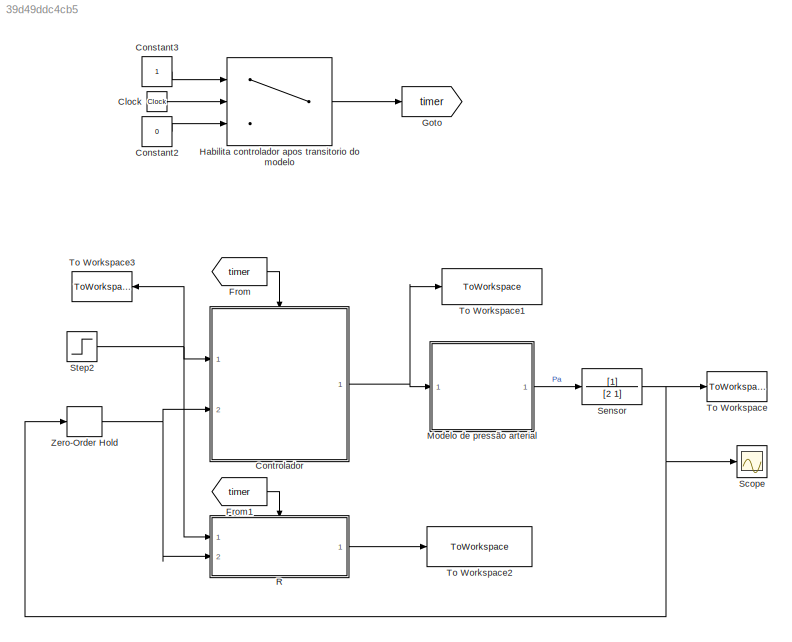
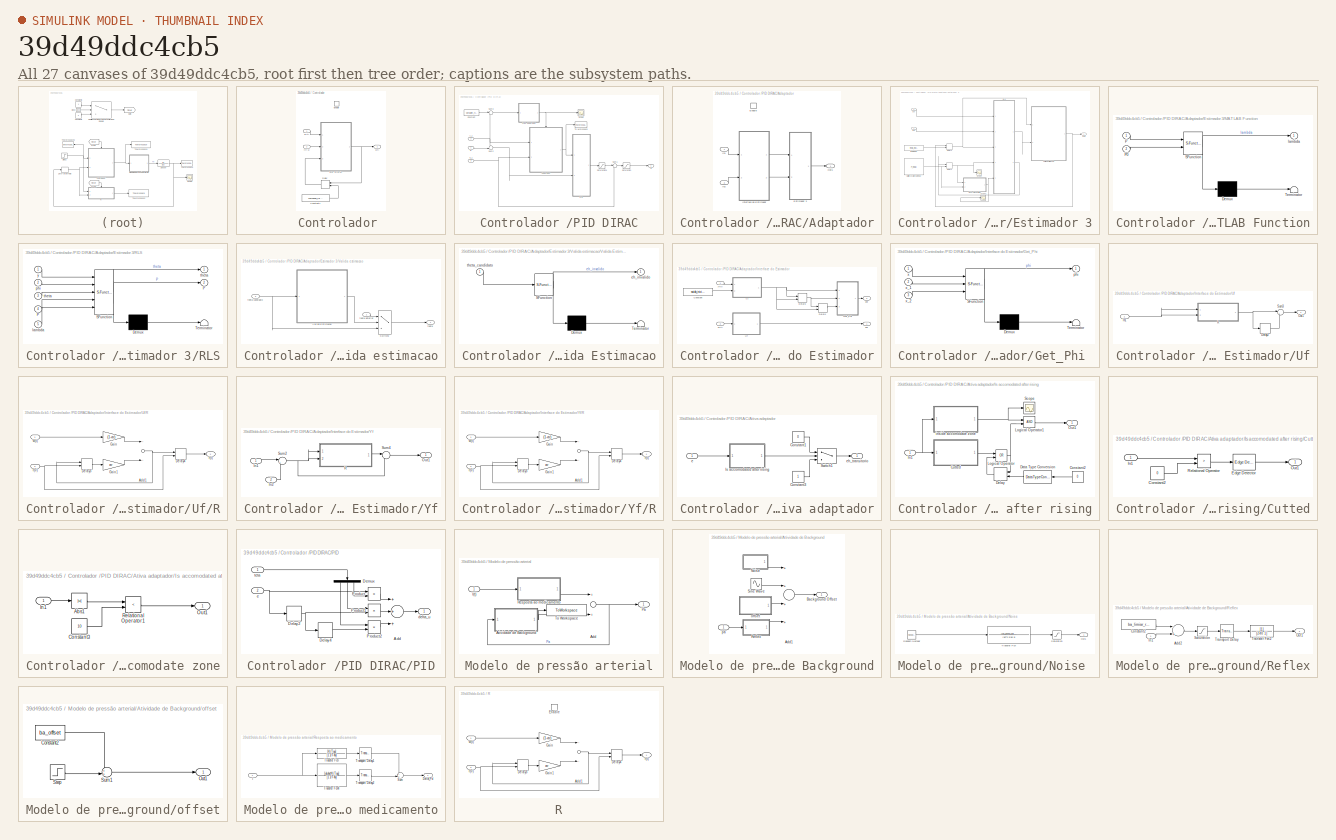
[diagram: thumbnail index - all 27 canvases of the model, root first then tree order]
MODEL slx_39d49ddc4cb5
KIND model
CONFIG AbsTol = auto
CONFIG EnableMultiTasking = off
CONFIG FixedStep = auto
CONFIG MaxStep = auto
CONFIG MinStep = auto
CONFIG RelTol = 1e-3
CONFIG SampleTimeConstraint = Unconstrained
CONFIG Solver = VariableStepAuto
CONFIG SolverName = VariableStepAuto
CONFIG StartTime = 0.0
CONFIG StopTime = 120000
BLOCK [Clock] Clock
BLOCK [Constant] Constant2
  Value = 0
BLOCK [Constant] Constant3
BLOCK [SubSystem] Controlador 
  Ports = [2, 1, 1]
  RequestExecContextInheritance = off
BLOCK [Constant] Controlador /Constant1
  Value = comando_inicial
BLOCK [Delay] Controlador /Delay
  DelayLength = 1
  InitialCondition = 0
  InitialConditionSource = Input port
  InputPortMap = u0,p4
  Ports = [2, 1]
  SampleTime = T
BLOCK [EnablePort] Controlador /Enable
  Ports = []
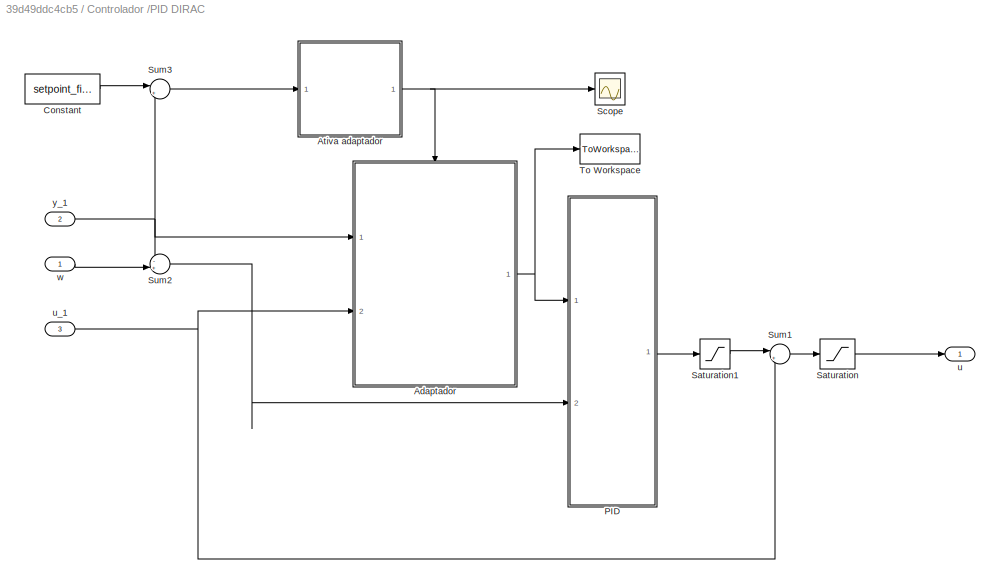
BLOCK [SubSystem] Controlador /PID DIRAC
  Ports = [3, 1]
  RequestExecContextInheritance = off
BLOCK [SubSystem] Controlador /PID DIRAC/Adaptador
  Ports = [2, 1, 1]
  RequestExecContextInheritance = off
BLOCK [EnablePort] Controlador /PID DIRAC/Adaptador/Enable
  Ports = []
BLOCK [SubSystem] Controlador /PID DIRAC/Adaptador/Estimador 3
  Ports = [2, 1]
  RequestExecContextInheritance = off
BLOCK [Delay] Controlador /PID DIRAC/Adaptador/Estimador 3/Delay2
  DelayLength = 1
  InitialCondition = 0
  InitialConditionSource = Input port
  InputPortMap = u0,p4
  Ports = [2, 1]
  SampleTime = T
BLOCK [Delay] Controlador /PID DIRAC/Adaptador/Estimador 3/Delay3
  DelayLength = 1
  InitialCondition = 0
  InitialConditionSource = Input port
  InputPortMap = u0,p4
  Ports = [2, 1]
  SampleTime = T
BLOCK [SubSystem] Controlador /PID DIRAC/Adaptador/Estimador 3/MATLAB Function
  ErrorFcn = Stateflow.Translate.translate
  PermitHierarchicalResolution = ExplicitOnly
  Ports = [2, 1]
  RequestExecContextInheritance = off
  SFBlockType = MATLAB Function
  TreatAsAtomicUnit = on
BLOCK [Demux] Controlador /PID DIRAC/Adaptador/Estimador 3/MATLAB Function/ Demux 
  Outputs = 1
  Ports = [1, 1]
BLOCK [S-Function] Controlador /PID DIRAC/Adaptador/Estimador 3/MATLAB Function/ SFunction 
  EnableBusSupport = on
  FunctionName = sf_sfun
  PortCounts = [2 2]
  Ports = [2, 2]
  SFcnIsStateOwnerBlock = off
  SFunctionDeploymentMode = off
  Tag = Stateflow S-Function Verificacao_Controle_Pressao_3 1
BLOCK [Terminator] Controlador /PID DIRAC/Adaptador/Estimador 3/MATLAB Function/ Terminator 
BLOCK [Inport] Controlador /PID DIRAC/Adaptador/Estimador 3/MATLAB Function/P
  IconDisplay = Port number
BLOCK [Inport] Controlador /PID DIRAC/Adaptador/Estimador 3/MATLAB Function/P0
  IconDisplay = Port number
  Port = 2
BLOCK [Outport] Controlador /PID DIRAC/Adaptador/Estimador 3/MATLAB Function/lambda
  IconDisplay = Port number
BLOCK [Constant] Controlador /PID DIRAC/Adaptador/Estimador 3/Matriz covariancia inicial
  Value = P_inicial
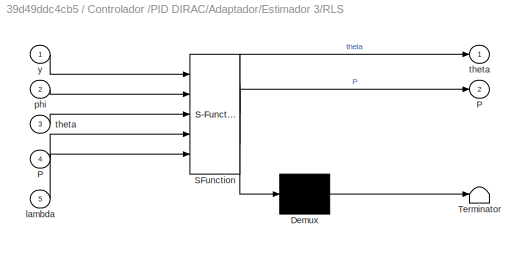
BLOCK [SubSystem] Controlador /PID DIRAC/Adaptador/Estimador 3/RLS
  ErrorFcn = Stateflow.Translate.translate
  PermitHierarchicalResolution = ExplicitOnly
  Ports = [5, 2]
  RequestExecContextInheritance = off
  SFBlockType = MATLAB Function
  TreatAsAtomicUnit = on
BLOCK [Demux] Controlador /PID DIRAC/Adaptador/Estimador 3/RLS/ Demux 
  Outputs = 1
  Ports = [1, 1]
BLOCK [S-Function] Controlador /PID DIRAC/Adaptador/Estimador 3/RLS/ SFunction 
  EnableBusSupport = on
  FunctionName = sf_sfun
  PortCounts = [5 3]
  Ports = [5, 3]
  SFcnIsStateOwnerBlock = off
  SFunctionDeploymentMode = off
  Tag = Stateflow S-Function Verificacao_Controle_Pressao_3 2
BLOCK [Terminator] Controlador /PID DIRAC/Adaptador/Estimador 3/RLS/ Terminator 
BLOCK [Outport] Controlador /PID DIRAC/Adaptador/Estimador 3/RLS/P
  IconDisplay = Port number
  Port = 2
BLOCK [Inport] Controlador /PID DIRAC/Adaptador/Estimador 3/RLS/P 
  IconDisplay = Port number
  Port = 4
BLOCK [Inport] Controlador /PID DIRAC/Adaptador/Estimador 3/RLS/lambda
  IconDisplay = Port number
  Port = 5
BLOCK [Inport] Controlador /PID DIRAC/Adaptador/Estimador 3/RLS/phi
  IconDisplay = Port number
  Port = 2
BLOCK [Outport] Controlador /PID DIRAC/Adaptador/Estimador 3/RLS/theta
  IconDisplay = Port number
BLOCK [Inport] Controlador /PID DIRAC/Adaptador/Estimador 3/RLS/theta 
  IconDisplay = Port number
  Port = 3
BLOCK [Inport] Controlador /PID DIRAC/Adaptador/Estimador 3/RLS/y
  IconDisplay = Port number
BLOCK [Scope] Controlador /PID DIRAC/Adaptador/Estimador 3/Scope
  Floating = off
  NumInputPorts = 1
  Ports = [1]
  ScopeSpecificationString = Simulink.scopes.TimeScopeBlockCfg('CurrentConfiguration', extmgr.ConfigurationSet(extmgr.Configuration('Core','General UI',true),extmgr.Configuration('Core','Source UI',true),extmgr.Configuration('Sources','WiredSimulink',true,'DataLoggingVariableName','ScopeData1'),extmgr.Configuration('Visuals','Time Domain',true,'SerializedDisplays',{struct('MinYLimReal','-0.51864','MaxYLimReal','1.16874','YLab...<+1509ch>
BLOCK [Scope] Controlador /PID DIRAC/Adaptador/Estimador 3/Scope1
  Floating = off
  NumInputPorts = 1
  Ports = [1]
  ScopeSpecificationString = Simulink.scopes.TimeScopeBlockCfg('CurrentConfiguration', extmgr.ConfigurationSet(extmgr.Configuration('Core','General UI',true),extmgr.Configuration('Core','Source UI',true),extmgr.Configuration('Sources','WiredSimulink',true,'DataLoggingVariableName','ScopeData2'),extmgr.Configuration('Visuals','Time Domain',true,'SerializedDisplays',{struct('MinYLimReal','0.58325','MaxYLimReal','1.04983','YLabe...<+1445ch>
BLOCK [SubSystem] Controlador /PID DIRAC/Adaptador/Estimador 3/Valida estimacao
  Ports = [2, 1]
  RequestExecContextInheritance = off
BLOCK [Switch] Controlador /PID DIRAC/Adaptador/Estimador 3/Valida estimacao/Switch2
  Criteria = u2 > Threshold
  InputSameDT = off
  SaturateOnIntegerOverflow = off
BLOCK [SubSystem] Controlador /PID DIRAC/Adaptador/Estimador 3/Valida estimacao/Valida Estimacao
  ErrorFcn = Stateflow.Translate.translate
  PermitHierarchicalResolution = ExplicitOnly
  Ports = [1, 1]
  RequestExecContextInheritance = off
  SFBlockType = MATLAB Function
  TreatAsAtomicUnit = on
BLOCK [Demux] Controlador /PID DIRAC/Adaptador/Estimador 3/Valida estimacao/Valida Estimacao/ Demux 
  Outputs = 1
  Ports = [1, 1]
BLOCK [S-Function] Controlador /PID DIRAC/Adaptador/Estimador 3/Valida estimacao/Valida Estimacao/ SFunction 
  EnableBusSupport = on
  FunctionName = sf_sfun
  PortCounts = [1 2]
  Ports = [1, 2]
  SFcnIsStateOwnerBlock = off
  SFunctionDeploymentMode = off
  Tag = Stateflow S-Function Verificacao_Controle_Pressao_3 3
BLOCK [Terminator] Controlador /PID DIRAC/Adaptador/Estimador 3/Valida estimacao/Valida Estimacao/ Terminator 
BLOCK [Outport] Controlador /PID DIRAC/Adaptador/Estimador 3/Valida estimacao/Valida Estimacao/eh_invalido
  IconDisplay = Port number
BLOCK [Inport] Controlador /PID DIRAC/Adaptador/Estimador 3/Valida estimacao/Valida Estimacao/theta_candidato
  IconDisplay = Port number
BLOCK [Outport] Controlador /PID DIRAC/Adaptador/Estimador 3/Valida estimacao/theta
  IconDisplay = Port number
BLOCK [Inport] Controlador /PID DIRAC/Adaptador/Estimador 3/Valida estimacao/theta anterior
  IconDisplay = Port number
BLOCK [Inport] Controlador /PID DIRAC/Adaptador/Estimador 3/Valida estimacao/theta candidato
  IconDisplay = Port number
  Port = 2
BLOCK [Inport] Controlador /PID DIRAC/Adaptador/Estimador 3/phi
  IconDisplay = Port number
  Port = 2
BLOCK [Inport] Controlador /PID DIRAC/Adaptador/Estimador 3/psi
  IconDisplay = Port number
BLOCK [Outport] Controlador /PID DIRAC/Adaptador/Estimador 3/theta
  IconDisplay = Port number
BLOCK [Constant] Controlador /PID DIRAC/Adaptador/Estimador 3/theta inicial
  Value = theta_inicial
BLOCK [Inport] Controlador /PID DIRAC/Adaptador/In1
  IconDisplay = Port number
BLOCK [Inport] Controlador /PID DIRAC/Adaptador/In2
  IconDisplay = Port number
  Port = 2
BLOCK [SubSystem] Controlador /PID DIRAC/Adaptador/Interface do Estimador
  Ports = [2, 2]
  RequestExecContextInheritance = off
BLOCK [Constant] Controlador /PID DIRAC/Adaptador/Interface do Estimador/Constant
  Value = saida_inicial_maxima
BLOCK [Delay] Controlador /PID DIRAC/Adaptador/Interface do Estimador/Delay1
  DelayLength = 1
  InitialCondition = 0
  InitialConditionSource = Input port
  InputPortMap = u0,p4
  Ports = [2, 1]
  SampleTime = T
BLOCK [Delay] Controlador /PID DIRAC/Adaptador/Interface do Estimador/Delay3
  DelayLength = 1
  InitialCondition = 0
  InitialConditionSource = Input port
  InputPortMap = u0,p4
  Ports = [2, 1]
  SampleTime = T
BLOCK [SubSystem] Controlador /PID DIRAC/Adaptador/Interface do Estimador/Get_Phi 
  ErrorFcn = Stateflow.Translate.translate
  PermitHierarchicalResolution = ExplicitOnly
  Ports = [3, 1]
  RequestExecContextInheritance = off
  SFBlockType = MATLAB Function
  TreatAsAtomicUnit = on
BLOCK [Demux] Controlador /PID DIRAC/Adaptador/Interface do Estimador/Get_Phi / Demux 
  Outputs = 1
  Ports = [1, 1]
BLOCK [S-Function] Controlador /PID DIRAC/Adaptador/Interface do Estimador/Get_Phi / SFunction 
  EnableBusSupport = on
  FunctionName = sf_sfun
  PortCounts = [3 2]
  Ports = [3, 2]
  SFcnIsStateOwnerBlock = off
  SFunctionDeploymentMode = off
  Tag = Stateflow S-Function Verificacao_Controle_Pressao_3 12
BLOCK [Terminator] Controlador /PID DIRAC/Adaptador/Interface do Estimador/Get_Phi / Terminator 
BLOCK [Outport] Controlador /PID DIRAC/Adaptador/Interface do Estimador/Get_Phi /phi
  IconDisplay = Port number
BLOCK [Inport] Controlador /PID DIRAC/Adaptador/Interface do Estimador/Get_Phi /x
  IconDisplay = Port number
BLOCK [Inport] Controlador /PID DIRAC/Adaptador/Interface do Estimador/Get_Phi /x_1
  IconDisplay = Port number
  Port = 2
BLOCK [Inport] Controlador /PID DIRAC/Adaptador/Interface do Estimador/Get_Phi /x_2
  IconDisplay = Port number
  Port = 3
BLOCK [SubSystem] Controlador /PID DIRAC/Adaptador/Interface do Estimador/Uf
  Ports = [1, 1]
  RequestExecContextInheritance = off
BLOCK [Delay] Controlador /PID DIRAC/Adaptador/Interface do Estimador/Uf/Delay2
  DelayLength = 1
  InputPortMap = u0
  Ports = [1, 1]
BLOCK [Inport] Controlador /PID DIRAC/Adaptador/Interface do Estimador/Uf/In1
  IconDisplay = Port number
BLOCK [Outport] Controlador /PID DIRAC/Adaptador/Interface do Estimador/Uf/Out1
  IconDisplay = Port number
BLOCK [SubSystem] Controlador /PID DIRAC/Adaptador/Interface do Estimador/Uf/R
  Ports = [2, 1]
  RequestExecContextInheritance = off
  TreatAsAtomicUnit = on
BLOCK [Sum] Controlador /PID DIRAC/Adaptador/Interface do Estimador/Uf/R/Add1
  InputSameDT = off
  OutDataTypeStr = Inherit: Inherit via internal rule
  Ports = [2, 1]
  SaturateOnIntegerOverflow = off
BLOCK [Delay] Controlador /PID DIRAC/Adaptador/Interface do Estimador/Uf/R/Delay3
  DelayLength = 1
  InitialCondition = 100
  InitialConditionSource = Input port
  InputPortMap = u0,p4
  Ports = [2, 1]
  SampleTime = T
BLOCK [Delay] Controlador /PID DIRAC/Adaptador/Interface do Estimador/Uf/R/Delay4
  DelayLength = d
  InitialCondition = 0
  InitialConditionSource = Input port
  InputPortMap = u0,p4
  Ports = [2, 1]
  SampleTime = T
BLOCK [Gain] Controlador /PID DIRAC/Adaptador/Interface do Estimador/Uf/R/Gain
  Gain = (1-ar)
  OutDataTypeStr = Inherit: Inherit via internal rule
  ParamDataTypeStr = Inherit: Inherit via internal rule
  SaturateOnIntegerOverflow = off
BLOCK [Gain] Controlador /PID DIRAC/Adaptador/Interface do Estimador/Uf/R/Gain1
  Gain = ar
  OutDataTypeStr = Inherit: Inherit via internal rule
  ParamDataTypeStr = Inherit: Inherit via internal rule
  SaturateOnIntegerOverflow = off
BLOCK [Inport] Controlador /PID DIRAC/Adaptador/Interface do Estimador/Uf/R/r(0)
  IconDisplay = Port number
  Port = 2
BLOCK [Outport] Controlador /PID DIRAC/Adaptador/Interface do Estimador/Uf/R/r(t)
  IconDisplay = Port number
BLOCK [Inport] Controlador /PID DIRAC/Adaptador/Interface do Estimador/Uf/R/w(t)
  IconDisplay = Port number
BLOCK [Sum] Controlador /PID DIRAC/Adaptador/Interface do Estimador/Uf/Sum3
  IconShape = round
  InputSameDT = off
  Inputs = |+-
  OutDataTypeStr = Inherit: Inherit via internal rule
  Ports = [2, 1]
  SaturateOnIntegerOverflow = off
BLOCK [SubSystem] Controlador /PID DIRAC/Adaptador/Interface do Estimador/Yf
  Ports = [2, 1]
  RequestExecContextInheritance = off
BLOCK [Inport] Controlador /PID DIRAC/Adaptador/Interface do Estimador/Yf/In1
  IconDisplay = Port number
BLOCK [Inport] Controlador /PID DIRAC/Adaptador/Interface do Estimador/Yf/In2
  IconDisplay = Port number
  Port = 2
BLOCK [Outport] Controlador /PID DIRAC/Adaptador/Interface do Estimador/Yf/Out1
  IconDisplay = Port number
BLOCK [SubSystem] Controlador /PID DIRAC/Adaptador/Interface do Estimador/Yf/R
  Ports = [2, 1]
  RequestExecContextInheritance = off
  TreatAsAtomicUnit = on
BLOCK [Sum] Controlador /PID DIRAC/Adaptador/Interface do Estimador/Yf/R/Add1
  InputSameDT = off
  OutDataTypeStr = Inherit: Inherit via internal rule
  Ports = [2, 1]
  SaturateOnIntegerOverflow = off
BLOCK [Delay] Controlador /PID DIRAC/Adaptador/Interface do Estimador/Yf/R/Delay3
  DelayLength = 1
  InitialCondition = 100
  InitialConditionSource = Input port
  InputPortMap = u0,p4
  Ports = [2, 1]
  SampleTime = T
BLOCK [Delay] Controlador /PID DIRAC/Adaptador/Interface do Estimador/Yf/R/Delay4
  DelayLength = d
  InitialCondition = 0
  InitialConditionSource = Input port
  InputPortMap = u0,p4
  Ports = [2, 1]
  SampleTime = T
BLOCK [Gain] Controlador /PID DIRAC/Adaptador/Interface do Estimador/Yf/R/Gain
  Gain = (1-ar)
  OutDataTypeStr = Inherit: Inherit via internal rule
  ParamDataTypeStr = Inherit: Inherit via internal rule
  SaturateOnIntegerOverflow = off
BLOCK [Gain] Controlador /PID DIRAC/Adaptador/Interface do Estimador/Yf/R/Gain1
  Gain = ar
  OutDataTypeStr = Inherit: Inherit via internal rule
  ParamDataTypeStr = Inherit: Inherit via internal rule
  SaturateOnIntegerOverflow = off
BLOCK [Inport] Controlador /PID DIRAC/Adaptador/Interface do Estimador/Yf/R/r(0)
  IconDisplay = Port number
  Port = 2
BLOCK [Outport] Controlador /PID DIRAC/Adaptador/Interface do Estimador/Yf/R/r(t)
  IconDisplay = Port number
BLOCK [Inport] Controlador /PID DIRAC/Adaptador/Interface do Estimador/Yf/R/w(t)
  IconDisplay = Port number
BLOCK [Sum] Controlador /PID DIRAC/Adaptador/Interface do Estimador/Yf/Sum2
  IconShape = round
  InputSameDT = off
  Inputs = |+-
  OutDataTypeStr = Inherit: Inherit via internal rule
  Ports = [2, 1]
  SaturateOnIntegerOverflow = off
BLOCK [Sum] Controlador /PID DIRAC/Adaptador/Interface do Estimador/Yf/Sum4
  IconShape = round
  InputSameDT = off
  Inputs = |-+
  OutDataTypeStr = Inherit: Inherit via internal rule
  Ports = [2, 1]
  SaturateOnIntegerOverflow = off
BLOCK [Outport] Controlador /PID DIRAC/Adaptador/Interface do Estimador/phi
  IconDisplay = Port number
  Port = 2
BLOCK [Outport] Controlador /PID DIRAC/Adaptador/Interface do Estimador/psi 
  IconDisplay = Port number
BLOCK [Inport] Controlador /PID DIRAC/Adaptador/Interface do Estimador/uf(t)
  IconDisplay = Port number
  Port = 2
BLOCK [Inport] Controlador /PID DIRAC/Adaptador/Interface do Estimador/yf(t) 
  IconDisplay = Port number
BLOCK [Outport] Controlador /PID DIRAC/Adaptador/Out1
  IconDisplay = Port number
BLOCK [SubSystem] Controlador /PID DIRAC/Ativa adaptador
  Ports = [1, 1]
  RequestExecContextInheritance = off
BLOCK [Constant] Controlador /PID DIRAC/Ativa adaptador/Constant1
  Value = 0
BLOCK [Constant] Controlador /PID DIRAC/Ativa adaptador/Constant3
BLOCK [SubSystem] Controlador /PID DIRAC/Ativa adaptador/Is accomodated after rising
  Ports = [1, 1]
  RequestExecContextInheritance = off
BLOCK [Constant] Controlador /PID DIRAC/Ativa adaptador/Is accomodated after rising/Constant2
  Value = 0
BLOCK [SubSystem] Controlador /PID DIRAC/Ativa adaptador/Is accomodated after rising/Cutted
  Ports = [1, 1]
  RequestExecContextInheritance = off
BLOCK [Constant] Controlador /PID DIRAC/Ativa adaptador/Is accomodated after rising/Cutted/Constant2
  Value = 0
BLOCK [Reference] Controlador /PID DIRAC/Ativa adaptador/Is accomodated after rising/Cutted/Edge Detector  REF=powerlib_meascontrol/Logic/Edge Detector
  Ports = [1, 1]
  SourceBlock = powerlib_meascontrol/Logic/Edge Detector
  SourceProductBaseCode = PS
  SourceProductName = Simscape Power Systems
  SourceType = Edge Detector
BLOCK [Inport] Controlador /PID DIRAC/Ativa adaptador/Is accomodated after rising/Cutted/In1
  IconDisplay = Port number
BLOCK [Outport] Controlador /PID DIRAC/Ativa adaptador/Is accomodated after rising/Cutted/Out1
  IconDisplay = Port number
BLOCK [RelationalOperator] Controlador /PID DIRAC/Ativa adaptador/Is accomodated after rising/Cutted/Relational Operator
  InputSameDT = off
  Operator = >
  OutDataTypeStr = boolean
  Ports = [2, 1]
  RndMeth = Simplest
BLOCK [DataTypeConversion] Controlador /PID DIRAC/Ativa adaptador/Is accomodated after rising/Data Type Conversion
  OutDataTypeStr = boolean
  RndMeth = Floor
  SaturateOnIntegerOverflow = off
BLOCK [Delay] Controlador /PID DIRAC/Ativa adaptador/Is accomodated after rising/Delay
  DelayLength = 1
  InitialCondition = 0
  InitialConditionSource = Input port
  InputPortMap = u0,p4
  Ports = [2, 1]
BLOCK [Inport] Controlador /PID DIRAC/Ativa adaptador/Is accomodated after rising/In1
  IconDisplay = Port number
BLOCK [Logic] Controlador /PID DIRAC/Ativa adaptador/Is accomodated after rising/Logical Operator
  AllPortsSameDT = off
  Operator = OR
  OutDataTypeStr = boolean
  Ports = [2, 1]
BLOCK [Logic] Controlador /PID DIRAC/Ativa adaptador/Is accomodated after rising/Logical Operator1
  AllPortsSameDT = off
  OutDataTypeStr = boolean
  Ports = [2, 1]
BLOCK [Outport] Controlador /PID DIRAC/Ativa adaptador/Is accomodated after rising/Out1
  IconDisplay = Port number
BLOCK [Scope] Controlador /PID DIRAC/Ativa adaptador/Is accomodated after rising/Scope
  Floating = off
  NumInputPorts = 1
  Ports = [1]
  ScopeSpecificationString = Simulink.scopes.TimeScopeBlockCfg('CurrentConfiguration', extmgr.ConfigurationSet(extmgr.Configuration('Core','General UI',true),extmgr.Configuration('Core','Source UI',true),extmgr.Configuration('Sources','WiredSimulink',true,'DataLoggingVariableName','ScopeData2'),extmgr.Configuration('Visuals','Time Domain',true,'SerializedDisplays',{struct('MinYLimReal','-0.125','MaxYLimReal','1.125','YLabelRe...<+1397ch>
BLOCK [SubSystem] Controlador /PID DIRAC/Ativa adaptador/Is accomodated after rising/inside accomodate zone
  Ports = [1, 1]
  RequestExecContextInheritance = off
BLOCK [Abs] Controlador /PID DIRAC/Ativa adaptador/Is accomodated after rising/inside accomodate zone/Abs1
  SaturateOnIntegerOverflow = off
BLOCK [Constant] Controlador /PID DIRAC/Ativa adaptador/Is accomodated after rising/inside accomodate zone/Constant3
  Value = 10
BLOCK [Inport] Controlador /PID DIRAC/Ativa adaptador/Is accomodated after rising/inside accomodate zone/In1
  IconDisplay = Port number
BLOCK [Outport] Controlador /PID DIRAC/Ativa adaptador/Is accomodated after rising/inside accomodate zone/Out1
  IconDisplay = Port number
BLOCK [RelationalOperator] Controlador /PID DIRAC/Ativa adaptador/Is accomodated after rising/inside accomodate zone/Relational Operator1
  InputSameDT = off
  Operator = <
  OutDataTypeStr = boolean
  Ports = [2, 1]
  RndMeth = Simplest
BLOCK [Switch] Controlador /PID DIRAC/Ativa adaptador/Switch1
  InputSameDT = off
  SaturateOnIntegerOverflow = off
  Threshold = 1
BLOCK [Inport] Controlador /PID DIRAC/Ativa adaptador/e
  IconDisplay = Port number
BLOCK [Outport] Controlador /PID DIRAC/Ativa adaptador/eh_transitorio
  IconDisplay = Port number
BLOCK [Constant] Controlador /PID DIRAC/Constant
  Value = setpoint_final
BLOCK [SubSystem] Controlador /PID DIRAC/PID
  Ports = [2, 1]
  RequestExecContextInheritance = off
BLOCK [Sum] Controlador /PID DIRAC/PID/Add
  InputSameDT = off
  Inputs = +++
  OutDataTypeStr = Inherit: Inherit via internal rule
  Ports = [3, 1]
  SaturateOnIntegerOverflow = off
BLOCK [Delay] Controlador /PID DIRAC/PID/Delay2
  DelayLength = 1
  InitialCondition = 0
  InputPortMap = u0
  Ports = [1, 1]
  SampleTime = T
BLOCK [Delay] Controlador /PID DIRAC/PID/Delay4
  DelayLength = 1
  InitialCondition = 0
  InputPortMap = u0
  Ports = [1, 1]
  SampleTime = T
BLOCK [Demux] Controlador /PID DIRAC/PID/Demux
  DisplayOption = bar
  Outputs = 3
  Ports = [1, 3]
BLOCK [Product] Controlador /PID DIRAC/PID/Product
  InputSameDT = off
  OutDataTypeStr = Inherit: Inherit via internal rule
  Ports = [2, 1]
  RndMeth = Floor
  SaturateOnIntegerOverflow = off
BLOCK [Product] Controlador /PID DIRAC/PID/Product1
  InputSameDT = off
  OutDataTypeStr = Inherit: Inherit via internal rule
  Ports = [2, 1]
  RndMeth = Floor
  SaturateOnIntegerOverflow = off
BLOCK [Product] Controlador /PID DIRAC/PID/Product2
  InputSameDT = off
  OutDataTypeStr = Inherit: Inherit via internal rule
  Ports = [2, 1]
  RndMeth = Floor
  SaturateOnIntegerOverflow = off
BLOCK [Outport] Controlador /PID DIRAC/PID/delta_u
  IconDisplay = Port number
BLOCK [Inport] Controlador /PID DIRAC/PID/e
  IconDisplay = Port number
  Port = 2
BLOCK [Inport] Controlador /PID DIRAC/PID/teta
  IconDisplay = Port number
BLOCK [Saturate] Controlador /PID DIRAC/Saturation
  InputPortMap = u0
  LowerLimit = 0
  Ports = [1, 1]
  UpperLimit = 180
BLOCK [Saturate] Controlador /PID DIRAC/Saturation1
  InputPortMap = u0
  LowerLimit = -40
  Ports = [1, 1]
  UpperLimit = 3
BLOCK [Scope] Controlador /PID DIRAC/Scope
  Floating = off
  NumInputPorts = 1
  Ports = [1]
  ScopeSpecificationString = Simulink.scopes.TimeScopeBlockCfg('CurrentConfiguration', extmgr.ConfigurationSet(extmgr.Configuration('Core','General UI',true),extmgr.Configuration('Core','Source UI',true),extmgr.Configuration('Sources','WiredSimulink',true,'DataLoggingVariableName','ScopeData1'),extmgr.Configuration('Visuals','Time Domain',true,'SerializedDisplays',{struct('MinYLimReal','-0.125','MaxYLimReal','1.125','YLabelRe...<+1408ch>
BLOCK [Sum] Controlador /PID DIRAC/Sum1
  IconShape = round
  InputSameDT = off
  Inputs = |++
  OutDataTypeStr = Inherit: Inherit via internal rule
  Ports = [2, 1]
  SaturateOnIntegerOverflow = off
BLOCK [Sum] Controlador /PID DIRAC/Sum2
  IconShape = round
  InputSameDT = off
  Inputs = -+|
  OutDataTypeStr = Inherit: Inherit via internal rule
  Ports = [2, 1]
  SaturateOnIntegerOverflow = off
BLOCK [Sum] Controlador /PID DIRAC/Sum3
  IconShape = round
  InputSameDT = off
  Inputs = |+-
  OutDataTypeStr = Inherit: Inherit via internal rule
  Ports = [2, 1]
  SaturateOnIntegerOverflow = off
BLOCK [ToWorkspace] Controlador /PID DIRAC/To Workspace
  FixptAsFi = on
  MaxDataPoints = inf
  Ports = [1]
  SampleTime = -1
  Save2DSignal = 3-D array (concatenate along third dimension)
  SaveFormat = Timeseries
  VariableName = theta
BLOCK [Outport] Controlador /PID DIRAC/u
  IconDisplay = Port number
BLOCK [Inport] Controlador /PID DIRAC/u_1
  IconDisplay = Port number
  Port = 3
BLOCK [Inport] Controlador /PID DIRAC/w 
  IconDisplay = Port number
BLOCK [Inport] Controlador /PID DIRAC/y_1
  IconDisplay = Port number
  Port = 2
BLOCK [Outport] Controlador /u(t)
  IconDisplay = Port number
BLOCK [Inport] Controlador /w(t)
  IconDisplay = Port number
BLOCK [Inport] Controlador /y(t-1)
  IconDisplay = Port number
  Port = 2
BLOCK [From] From
  GotoTag = timer
BLOCK [From] From1
  GotoTag = timer
BLOCK [Goto] Goto
  GotoTag = timer
BLOCK [Switch] Habilita controlador apos transitorio do modelo
  Criteria = u2 > Threshold
  InputSameDT = off
  SaturateOnIntegerOverflow = off
  Threshold = Instante_habilita_controlador
  ZeroCross = off
BLOCK [SubSystem] Modelo de pressão arterial
  Ports = [1, 1]
  RequestExecContextInheritance = off
BLOCK [Sum] Modelo de pressão arterial/Add
  InputSameDT = off
  OutDataTypeStr = Inherit: Inherit via internal rule
  Ports = [2, 1]
  SaturateOnIntegerOverflow = off
BLOCK [SubSystem] Modelo de pressão arterial/Atividade de Background
  Ports = [1, 1]
  RequestExecContextInheritance = off
BLOCK [Sum] Modelo de pressão arterial/Atividade de Background/Add1
  InputSameDT = off
  Inputs = ++++
  OutDataTypeStr = Inherit: Inherit via internal rule
  Ports = [4, 1]
  SaturateOnIntegerOverflow = off
BLOCK [Outport] Modelo de pressão arterial/Atividade de Background/Background Offset 
  IconDisplay = Port number
BLOCK [SubSystem] Modelo de pressão arterial/Atividade de Background/Noise 
  Ports = [0, 1]
  RequestExecContextInheritance = off
BLOCK [Outport] Modelo de pressão arterial/Atividade de Background/Noise /Out1
  IconDisplay = Port number
BLOCK [RandomNumber] Modelo de pressão arterial/Atividade de Background/Noise /Random Number
  SampleTime = T
  Seed = semente_ruido
BLOCK [Saturate] Modelo de pressão arterial/Atividade de Background/Noise /Saturation
  InputPortMap = u0
  LowerLimit = -ba_ganho_estocastico
  Ports = [1, 1]
  UpperLimit = ba_ganho_estocastico
BLOCK [TransferFcn] Modelo de pressão arterial/Atividade de Background/Noise /Transfer Fcn
  Denominator = [30^2 2*30 1]
  Numerator = [ba_ganho_estocastico]
BLOCK [SubSystem] Modelo de pressão arterial/Atividade de Background/Reflex
  Ports = [1, 1]
  RequestExecContextInheritance = off
BLOCK [Sum] Modelo de pressão arterial/Atividade de Background/Reflex/Add2
  InputSameDT = off
  Inputs = -+
  OutDataTypeStr = Inherit: Inherit via internal rule
  Ports = [2, 1]
  SaturateOnIntegerOverflow = off
BLOCK [Constant] Modelo de pressão arterial/Atividade de Background/Reflex/Constant2
  Value = ba_limiar_reflexo
BLOCK [Inport] Modelo de pressão arterial/Atividade de Background/Reflex/In1
  IconDisplay = Port number
BLOCK [Outport] Modelo de pressão arterial/Atividade de Background/Reflex/Out1
  IconDisplay = Port number
BLOCK [Saturate] Modelo de pressão arterial/Atividade de Background/Reflex/Saturation
  InputPortMap = u0
  LowerLimit = -35
  Ports = [1, 1]
  UpperLimit = 0
BLOCK [TransferFcn] Modelo de pressão arterial/Atividade de Background/Reflex/Transfer Fcn2
  Denominator = [240 1]
BLOCK [TransportDelay] Modelo de pressão arterial/Atividade de Background/Reflex/Transport Delay
  DelayTime = 40
  Ports = [1, 1]
BLOCK [Sin] Modelo de pressão arterial/Atividade de Background/Sine Wave
  Amplitude = ba_amplitude_seno
  Frequency = ba_frequencia_seno
  Ports = [0, 1]
  SampleTime = 0
BLOCK [SubSystem] Modelo de pressão arterial/Atividade de Background/offset
  Ports = [0, 1]
  RequestExecContextInheritance = off
BLOCK [Constant] Modelo de pressão arterial/Atividade de Background/offset/Constant2
  Value = ba_offset
BLOCK [Outport] Modelo de pressão arterial/Atividade de Background/offset/Out1
  IconDisplay = Port number
BLOCK [Step] Modelo de pressão arterial/Atividade de Background/offset/Step
  After = Amplitude_perturbacao
  SampleTime = 0
  Time = Instante_habilita_perturbacao
BLOCK [Sum] Modelo de pressão arterial/Atividade de Background/offset/Sum1
  IconShape = round
  InputSameDT = off
  Inputs = ++|
  OutDataTypeStr = Inherit: Inherit via internal rule
  Ports = [2, 1]
  SaturateOnIntegerOverflow = off
BLOCK [Inport] Modelo de pressão arterial/Atividade de Background/pa
  IconDisplay = Port number
BLOCK [Inport] Modelo de pressão arterial/I(t)
  IconDisplay = Port number
BLOCK [Outport] Modelo de pressão arterial/Pa
  IconDisplay = Port number
BLOCK [SubSystem] Modelo de pressão arterial/Resposta ao medicamento
  Ports = [1, 1]
  RequestExecContextInheritance = off
BLOCK [Outport] Modelo de pressão arterial/Resposta ao medicamento/Delta_Pd
  IconDisplay = Port number
BLOCK [Inport] Modelo de pressão arterial/Resposta ao medicamento/I
  IconDisplay = Port number
BLOCK [Sum] Modelo de pressão arterial/Resposta ao medicamento/Sum
  IconShape = round
  InputSameDT = off
  Inputs = ++|
  OutDataTypeStr = Inherit: Inherit via internal rule
  Ports = [2, 1]
  SaturateOnIntegerOverflow = off
BLOCK [TransferFcn] Modelo de pressão arterial/Resposta ao medicamento/Transfer Fcn
  Denominator = [1 1/Tau]
  Numerator = [K/Tau]
BLOCK [TransferFcn] Modelo de pressão arterial/Resposta ao medicamento/Transfer Fcn4
  Denominator = [1 1/Tau]
  Numerator = [alpha*K/Tau]
BLOCK [TransportDelay] Modelo de pressão arterial/Resposta ao medicamento/Transport Delay1
  DelayTime = Tau_i
  Ports = [1, 1]
BLOCK [TransportDelay] Modelo de pressão arterial/Resposta ao medicamento/Transport Delay2
  DelayTime = Tau_i+Tau_c
  Ports = [1, 1]
BLOCK [ToWorkspace] Modelo de pressão arterial/To Workspace
  FixptAsFi = on
  MaxDataPoints = inf
  Ports = [1]
  SampleTime = -1
  Save2DSignal = 3-D array (concatenate along third dimension)
  SaveFormat = Timeseries
  VariableName = atividade_background
BLOCK [SubSystem] R
  Ports = [2, 1, 1]
  RequestExecContextInheritance = off
  TreatAsAtomicUnit = on
BLOCK [Sum] R/Add1
  InputSameDT = off
  OutDataTypeStr = Inherit: Inherit via internal rule
  Ports = [2, 1]
  SaturateOnIntegerOverflow = off
BLOCK [Delay] R/Delay3
  DelayLength = 1
  InitialCondition = 100
  InitialConditionSource = Input port
  InputPortMap = u0,p4
  Ports = [2, 1]
  SampleTime = T
BLOCK [Delay] R/Delay4
  DelayLength = d
  InitialCondition = 0
  InitialConditionSource = Input port
  InputPortMap = u0,p4
  Ports = [2, 1]
  SampleTime = T
BLOCK [EnablePort] R/Enable
  Ports = []
BLOCK [Gain] R/Gain
  Gain = (1-ar)
  OutDataTypeStr = Inherit: Inherit via internal rule
  ParamDataTypeStr = Inherit: Inherit via internal rule
  SaturateOnIntegerOverflow = off
BLOCK [Gain] R/Gain1
  Gain = ar
  OutDataTypeStr = Inherit: Inherit via internal rule
  ParamDataTypeStr = Inherit: Inherit via internal rule
  SaturateOnIntegerOverflow = off
BLOCK [Inport] R/r(0)
  IconDisplay = Port number
  Port = 2
BLOCK [Outport] R/r(t)
  IconDisplay = Port number
BLOCK [Inport] R/w(t)
  IconDisplay = Port number
BLOCK [Scope] Scope
  Floating = off
  NumInputPorts = 1
  Ports = [1]
  ScopeSpecificationString = Simulink.scopes.TimeScopeBlockCfg('CurrentConfiguration', extmgr.ConfigurationSet(extmgr.Configuration('Core','General UI',true),extmgr.Configuration('Core','Source UI',true),extmgr.Configuration('Sources','WiredSimulink',true),extmgr.Configuration('Visuals','Time Domain',true,'SerializedDisplays',{struct('MinYLimReal','-22.68029','MaxYLimReal','204.12263','YLabelReal','','MinYLimMag','0.00000','M...<+1407ch>
BLOCK [TransferFcn] Sensor
  Denominator = [2 1]
BLOCK [Step] Step2
  After = setpoint_final
  Before = setpoint_inicial
  SampleTime = 0
  Time = Instante_habilita_controlador+Tempo_Segundo_Step
BLOCK [ToWorkspace] To Workspace
  FixptAsFi = on
  MaxDataPoints = inf
  Ports = [1]
  SampleTime = -1
  Save2DSignal = 3-D array (concatenate along third dimension)
  SaveFormat = Timeseries
  VariableName = saida
BLOCK [ToWorkspace] To Workspace1
  FixptAsFi = on
  MaxDataPoints = inf
  Ports = [1]
  SampleTime = -1
  Save2DSignal = 3-D array (concatenate along third dimension)
  SaveFormat = Timeseries
  VariableName = entrada_planta
BLOCK [ToWorkspace] To Workspace2
  FixptAsFi = on
  MaxDataPoints = inf
  Ports = [1]
  SampleTime = -1
  Save2DSignal = 3-D array (concatenate along third dimension)
  SaveFormat = Timeseries
  VariableName = saida_referencia
BLOCK [ToWorkspace] To Workspace3
  FixptAsFi = on
  MaxDataPoints = inf
  Ports = [1]
  SampleTime = -1
  Save2DSignal = 3-D array (concatenate along third dimension)
  SaveFormat = Timeseries
  VariableName = referencia
BLOCK [ZeroOrderHold] Zero-Order Hold
  SampleTime = T
LINE Clock:1 -> Habilita controlador apos transitorio do modelo:2
LINE Constant2:1 -> Habilita controlador apos transitorio do modelo:3
LINE Constant3:1 -> Habilita controlador apos transitorio do modelo:1
LINE Controlador /Constant1:1 -> Controlador /Delay:2
LINE Controlador /Delay:1 -> Controlador /PID DIRAC:3
NET Controlador /PID DIRAC/Adaptador/Estimador 3/Delay2:1 -> Controlador /PID DIRAC/Adaptador/Estimador 3/MATLAB Function:1, Controlador /PID DIRAC/Adaptador/Estimador 3/RLS:4, Controlador /PID DIRAC/Adaptador/Estimador 3/Scope:1
NET Controlador /PID DIRAC/Adaptador/Estimador 3/Delay3:1 -> Controlador /PID DIRAC/Adaptador/Estimador 3/RLS:3, Controlador /PID DIRAC/Adaptador/Estimador 3/Valida estimacao:1
NET Controlador /PID DIRAC/Adaptador/Estimador 3/MATLAB Function:1 -> Controlador /PID DIRAC/Adaptador/Estimador 3/RLS:5, Controlador /PID DIRAC/Adaptador/Estimador 3/Scope1:1
NET Controlador /PID DIRAC/Adaptador/Estimador 3/Matriz covariancia inicial:1 -> Controlador /PID DIRAC/Adaptador/Estimador 3/Delay2:2, Controlador /PID DIRAC/Adaptador/Estimador 3/MATLAB Function:2
LINE Controlador /PID DIRAC/Adaptador/Estimador 3/RLS:1 -> Controlador /PID DIRAC/Adaptador/Estimador 3/Valida estimacao:2
LINE Controlador /PID DIRAC/Adaptador/Estimador 3/RLS:2 -> Controlador /PID DIRAC/Adaptador/Estimador 3/Delay2:1
LINE Controlador /PID DIRAC/Adaptador/Estimador 3/Valida estimacao/Switch2:1 -> Controlador /PID DIRAC/Adaptador/Estimador 3/Valida estimacao/theta:1
LINE Controlador /PID DIRAC/Adaptador/Estimador 3/Valida estimacao/Valida Estimacao:1 -> Controlador /PID DIRAC/Adaptador/Estimador 3/Valida estimacao/Switch2:2
LINE Controlador /PID DIRAC/Adaptador/Estimador 3/Valida estimacao/theta anterior:1 -> Controlador /PID DIRAC/Adaptador/Estimador 3/Valida estimacao/Switch2:1
NET Controlador /PID DIRAC/Adaptador/Estimador 3/Valida estimacao/theta candidato:1 -> Controlador /PID DIRAC/Adaptador/Estimador 3/Valida estimacao/Switch2:3, Controlador /PID DIRAC/Adaptador/Estimador 3/Valida estimacao/Valida Estimacao:1
NET Controlador /PID DIRAC/Adaptador/Estimador 3/Valida estimacao:1 -> Controlador /PID DIRAC/Adaptador/Estimador 3/Delay3:1, Controlador /PID DIRAC/Adaptador/Estimador 3/theta:1
LINE Controlador /PID DIRAC/Adaptador/Estimador 3/phi:1 -> Controlador /PID DIRAC/Adaptador/Estimador 3/RLS:2
LINE Controlador /PID DIRAC/Adaptador/Estimador 3/psi:1 -> Controlador /PID DIRAC/Adaptador/Estimador 3/RLS:1
LINE Controlador /PID DIRAC/Adaptador/Estimador 3/theta inicial:1 -> Controlador /PID DIRAC/Adaptador/Estimador 3/Delay3:2
LINE Controlador /PID DIRAC/Adaptador/Estimador 3:1 -> Controlador /PID DIRAC/Adaptador/Out1:1
LINE Controlador /PID DIRAC/Adaptador/In1:1 -> Controlador /PID DIRAC/Adaptador/Interface do Estimador:1
LINE Controlador /PID DIRAC/Adaptador/In2:1 -> Controlador /PID DIRAC/Adaptador/Interface do Estimador:2
LINE Controlador /PID DIRAC/Adaptador/Interface do Estimador/Constant:1 -> Controlador /PID DIRAC/Adaptador/Interface do Estimador/Yf:2
LINE Controlador /PID DIRAC/Adaptador/Interface do Estimador/Delay1:1 -> Controlador /PID DIRAC/Adaptador/Interface do Estimador/Get_Phi :3
NET Controlador /PID DIRAC/Adaptador/Interface do Estimador/Delay3:1 -> Controlador /PID DIRAC/Adaptador/Interface do Estimador/Delay1:1, Controlador /PID DIRAC/Adaptador/Interface do Estimador/Get_Phi :2
LINE Controlador /PID DIRAC/Adaptador/Interface do Estimador/Get_Phi :1 -> Controlador /PID DIRAC/Adaptador/Interface do Estimador/phi:1
LINE Controlador /PID DIRAC/Adaptador/Interface do Estimador/Uf/Delay2:1 -> Controlador /PID DIRAC/Adaptador/Interface do Estimador/Uf/Sum3:2
NET Controlador /PID DIRAC/Adaptador/Interface do Estimador/Uf/In1:1 -> Controlador /PID DIRAC/Adaptador/Interface do Estimador/Uf/R:1, Controlador /PID DIRAC/Adaptador/Interface do Estimador/Uf/R:2
NET Controlador /PID DIRAC/Adaptador/Interface do Estimador/Uf/R/Add1:1 -> Controlador /PID DIRAC/Adaptador/Interface do Estimador/Uf/R/Delay3:1, Controlador /PID DIRAC/Adaptador/Interface do Estimador/Uf/R/Delay4:1
LINE Controlador /PID DIRAC/Adaptador/Interface do Estimador/Uf/R/Delay3:1 -> Controlador /PID DIRAC/Adaptador/Interface do Estimador/Uf/R/Gain1:1
LINE Controlador /PID DIRAC/Adaptador/Interface do Estimador/Uf/R/Delay4:1 -> Controlador /PID DIRAC/Adaptador/Interface do Estimador/Uf/R/r(t):1
LINE Controlador /PID DIRAC/Adaptador/Interface do Estimador/Uf/R/Gain1:1 -> Controlador /PID DIRAC/Adaptador/Interface do Estimador/Uf/R/Add1:2
LINE Controlador /PID DIRAC/Adaptador/Interface do Estimador/Uf/R/Gain:1 -> Controlador /PID DIRAC/Adaptador/Interface do Estimador/Uf/R/Add1:1
NET Controlador /PID DIRAC/Adaptador/Interface do Estimador/Uf/R/r(0):1 -> Controlador /PID DIRAC/Adaptador/Interface do Estimador/Uf/R/Delay3:2, Controlador /PID DIRAC/Adaptador/Interface do Estimador/Uf/R/Delay4:2
LINE Controlador /PID DIRAC/Adaptador/Interface do Estimador/Uf/R/w(t):1 -> Controlador /PID DIRAC/Adaptador/Interface do Estimador/Uf/R/Gain:1
NET Controlador /PID DIRAC/Adaptador/Interface do Estimador/Uf/R:1 -> Controlador /PID DIRAC/Adaptador/Interface do Estimador/Uf/Delay2:1, Controlador /PID DIRAC/Adaptador/Interface do Estimador/Uf/Sum3:1
LINE Controlador /PID DIRAC/Adaptador/Interface do Estimador/Uf/Sum3:1 -> Controlador /PID DIRAC/Adaptador/Interface do Estimador/Uf/Out1:1
LINE Controlador /PID DIRAC/Adaptador/Interface do Estimador/Uf:1 -> Controlador /PID DIRAC/Adaptador/Interface do Estimador/psi :1
LINE Controlador /PID DIRAC/Adaptador/Interface do Estimador/Yf/In1:1 -> Controlador /PID DIRAC/Adaptador/Interface do Estimador/Yf/Sum2:1
LINE Controlador /PID DIRAC/Adaptador/Interface do Estimador/Yf/In2:1 -> Controlador /PID DIRAC/Adaptador/Interface do Estimador/Yf/Sum2:2
NET Controlador /PID DIRAC/Adaptador/Interface do Estimador/Yf/R/Add1:1 -> Controlador /PID DIRAC/Adaptador/Interface do Estimador/Yf/R/Delay3:1, Controlador /PID DIRAC/Adaptador/Interface do Estimador/Yf/R/Delay4:1
LINE Controlador /PID DIRAC/Adaptador/Interface do Estimador/Yf/R/Delay3:1 -> Controlador /PID DIRAC/Adaptador/Interface do Estimador/Yf/R/Gain1:1
LINE Controlador /PID DIRAC/Adaptador/Interface do Estimador/Yf/R/Delay4:1 -> Controlador /PID DIRAC/Adaptador/Interface do Estimador/Yf/R/r(t):1
LINE Controlador /PID DIRAC/Adaptador/Interface do Estimador/Yf/R/Gain1:1 -> Controlador /PID DIRAC/Adaptador/Interface do Estimador/Yf/R/Add1:2
LINE Controlador /PID DIRAC/Adaptador/Interface do Estimador/Yf/R/Gain:1 -> Controlador /PID DIRAC/Adaptador/Interface do Estimador/Yf/R/Add1:1
NET Controlador /PID DIRAC/Adaptador/Interface do Estimador/Yf/R/r(0):1 -> Controlador /PID DIRAC/Adaptador/Interface do Estimador/Yf/R/Delay3:2, Controlador /PID DIRAC/Adaptador/Interface do Estimador/Yf/R/Delay4:2
LINE Controlador /PID DIRAC/Adaptador/Interface do Estimador/Yf/R/w(t):1 -> Controlador /PID DIRAC/Adaptador/Interface do Estimador/Yf/R/Gain:1
LINE Controlador /PID DIRAC/Adaptador/Interface do Estimador/Yf/R:1 -> Controlador /PID DIRAC/Adaptador/Interface do Estimador/Yf/Sum4:1
NET Controlador /PID DIRAC/Adaptador/Interface do Estimador/Yf/Sum2:1 -> Controlador /PID DIRAC/Adaptador/Interface do Estimador/Yf/R:1, Controlador /PID DIRAC/Adaptador/Interface do Estimador/Yf/R:2, Controlador /PID DIRAC/Adaptador/Interface do Estimador/Yf/Sum4:2
LINE Controlador /PID DIRAC/Adaptador/Interface do Estimador/Yf/Sum4:1 -> Controlador /PID DIRAC/Adaptador/Interface do Estimador/Yf/Out1:1
NET Controlador /PID DIRAC/Adaptador/Interface do Estimador/Yf:1 -> Controlador /PID DIRAC/Adaptador/Interface do Estimador/Delay1:2, Controlador /PID DIRAC/Adaptador/Interface do Estimador/Delay3:1, Controlador /PID DIRAC/Adaptador/Interface do Estimador/Delay3:2, Controlador /PID DIRAC/Adaptador/Interface do Estimador/Get_Phi :1
LINE Controlador /PID DIRAC/Adaptador/Interface do Estimador/uf(t):1 -> Controlador /PID DIRAC/Adaptador/Interface do Estimador/Uf:1
LINE Controlador /PID DIRAC/Adaptador/Interface do Estimador/yf(t) :1 -> Controlador /PID DIRAC/Adaptador/Interface do Estimador/Yf:1
LINE Controlador /PID DIRAC/Adaptador/Interface do Estimador:1 -> Controlador /PID DIRAC/Adaptador/Estimador 3:1
LINE Controlador /PID DIRAC/Adaptador/Interface do Estimador:2 -> Controlador /PID DIRAC/Adaptador/Estimador 3:2
NET Controlador /PID DIRAC/Adaptador:1 -> Controlador /PID DIRAC/PID:1, Controlador /PID DIRAC/To Workspace:1
LINE Controlador /PID DIRAC/Ativa adaptador/Constant1:1 -> Controlador /PID DIRAC/Ativa adaptador/Switch1:1
LINE Controlador /PID DIRAC/Ativa adaptador/Constant3:1 -> Controlador /PID DIRAC/Ativa adaptador/Switch1:3
LINE Controlador /PID DIRAC/Ativa adaptador/Is accomodated after rising/Constant2:1 -> Controlador /PID DIRAC/Ativa adaptador/Is accomodated after rising/Data Type Conversion:1
LINE Controlador /PID DIRAC/Ativa adaptador/Is accomodated after rising/Cutted/Constant2:1 -> Controlador /PID DIRAC/Ativa adaptador/Is accomodated after rising/Cutted/Relational Operator:2
LINE Controlador /PID DIRAC/Ativa adaptador/Is accomodated after rising/Cutted/Edge Detector:1 -> Controlador /PID DIRAC/Ativa adaptador/Is accomodated after rising/Cutted/Out1:1
LINE Controlador /PID DIRAC/Ativa adaptador/Is accomodated after rising/Cutted/In1:1 -> Controlador /PID DIRAC/Ativa adaptador/Is accomodated after rising/Cutted/Relational Operator:1
LINE Controlador /PID DIRAC/Ativa adaptador/Is accomodated after rising/Cutted/Relational Operator:1 -> Controlador /PID DIRAC/Ativa adaptador/Is accomodated after rising/Cutted/Edge Detector:1
LINE Controlador /PID DIRAC/Ativa adaptador/Is accomodated after rising/Cutted:1 -> Controlador /PID DIRAC/Ativa adaptador/Is accomodated after rising/Logical Operator:1
LINE Controlador /PID DIRAC/Ativa adaptador/Is accomodated after rising/Data Type Conversion:1 -> Controlador /PID DIRAC/Ativa adaptador/Is accomodated after rising/Delay:2
LINE Controlador /PID DIRAC/Ativa adaptador/Is accomodated after rising/Delay:1 -> Controlador /PID DIRAC/Ativa adaptador/Is accomodated after rising/Logical Operator:2
NET Controlador /PID DIRAC/Ativa adaptador/Is accomodated after rising/In1:1 -> Controlador /PID DIRAC/Ativa adaptador/Is accomodated after rising/Cutted:1, Controlador /PID DIRAC/Ativa adaptador/Is accomodated after rising/inside accomodate zone:1
LINE Controlador /PID DIRAC/Ativa adaptador/Is accomodated after rising/Logical Operator1:1 -> Controlador /PID DIRAC/Ativa adaptador/Is accomodated after rising/Out1:1
NET Controlador /PID DIRAC/Ativa adaptador/Is accomodated after rising/Logical Operator:1 -> Controlador /PID DIRAC/Ativa adaptador/Is accomodated after rising/Delay:1, Controlador /PID DIRAC/Ativa adaptador/Is accomodated after rising/Logical Operator1:2
LINE Controlador /PID DIRAC/Ativa adaptador/Is accomodated after rising/inside accomodate zone/Abs1:1 -> Controlador /PID DIRAC/Ativa adaptador/Is accomodated after rising/inside accomodate zone/Relational Operator1:1
LINE Controlador /PID DIRAC/Ativa adaptador/Is accomodated after rising/inside accomodate zone/Constant3:1 -> Controlador /PID DIRAC/Ativa adaptador/Is accomodated after rising/inside accomodate zone/Relational Operator1:2
LINE Controlador /PID DIRAC/Ativa adaptador/Is accomodated after rising/inside accomodate zone/In1:1 -> Controlador /PID DIRAC/Ativa adaptador/Is accomodated after rising/inside accomodate zone/Abs1:1
LINE Controlador /PID DIRAC/Ativa adaptador/Is accomodated after rising/inside accomodate zone/Relational Operator1:1 -> Controlador /PID DIRAC/Ativa adaptador/Is accomodated after rising/inside accomodate zone/Out1:1
NET Controlador /PID DIRAC/Ativa adaptador/Is accomodated after rising/inside accomodate zone:1 -> Controlador /PID DIRAC/Ativa adaptador/Is accomodated after rising/Logical Operator1:1, Controlador /PID DIRAC/Ativa adaptador/Is accomodated after rising/Scope:1
LINE Controlador /PID DIRAC/Ativa adaptador/Is accomodated after rising:1 -> Controlador /PID DIRAC/Ativa adaptador/Switch1:2
LINE Controlador /PID DIRAC/Ativa adaptador/Switch1:1 -> Controlador /PID DIRAC/Ativa adaptador/eh_transitorio:1
LINE Controlador /PID DIRAC/Ativa adaptador/e:1 -> Controlador /PID DIRAC/Ativa adaptador/Is accomodated after rising:1
NET Controlador /PID DIRAC/Ativa adaptador:1 -> Controlador /PID DIRAC/Adaptador:enable, Controlador /PID DIRAC/Scope:1
LINE Controlador /PID DIRAC/Constant:1 -> Controlador /PID DIRAC/Sum3:1
LINE Controlador /PID DIRAC/PID/Add:1 -> Controlador /PID DIRAC/PID/delta_u:1
NET Controlador /PID DIRAC/PID/Delay2:1 -> Controlador /PID DIRAC/PID/Delay4:1, Controlador /PID DIRAC/PID/Product1:2
LINE Controlador /PID DIRAC/PID/Delay4:1 -> Controlador /PID DIRAC/PID/Product2:2
LINE Controlador /PID DIRAC/PID/Demux:1 -> Controlador /PID DIRAC/PID/Product2:1
LINE Controlador /PID DIRAC/PID/Demux:2 -> Controlador /PID DIRAC/PID/Product1:1
LINE Controlador /PID DIRAC/PID/Demux:3 -> Controlador /PID DIRAC/PID/Product:2
LINE Controlador /PID DIRAC/PID/Product1:1 -> Controlador /PID DIRAC/PID/Add:2
LINE Controlador /PID DIRAC/PID/Product2:1 -> Controlador /PID DIRAC/PID/Add:3
LINE Controlador /PID DIRAC/PID/Product:1 -> Controlador /PID DIRAC/PID/Add:1
NET Controlador /PID DIRAC/PID/e:1 -> Controlador /PID DIRAC/PID/Delay2:1, Controlador /PID DIRAC/PID/Product:1
LINE Controlador /PID DIRAC/PID/teta:1 -> Controlador /PID DIRAC/PID/Demux:1
LINE Controlador /PID DIRAC/PID:1 -> Controlador /PID DIRAC/Saturation1:1
LINE Controlador /PID DIRAC/Saturation1:1 -> Controlador /PID DIRAC/Sum1:1
LINE Controlador /PID DIRAC/Saturation:1 -> Controlador /PID DIRAC/u:1
LINE Controlador /PID DIRAC/Sum1:1 -> Controlador /PID DIRAC/Saturation:1
LINE Controlador /PID DIRAC/Sum2:1 -> Controlador /PID DIRAC/PID:2
LINE Controlador /PID DIRAC/Sum3:1 -> Controlador /PID DIRAC/Ativa adaptador:1
NET Controlador /PID DIRAC/u_1:1 -> Controlador /PID DIRAC/Adaptador:2, Controlador /PID DIRAC/Sum1:2
LINE Controlador /PID DIRAC/w :1 -> Controlador /PID DIRAC/Sum2:2
NET Controlador /PID DIRAC/y_1:1 -> Controlador /PID DIRAC/Adaptador:1, Controlador /PID DIRAC/Sum2:1, Controlador /PID DIRAC/Sum3:2
NET Controlador /PID DIRAC:1 -> Controlador /Delay:1, Controlador /u(t):1
LINE Controlador /w(t):1 -> Controlador /PID DIRAC:1
LINE Controlador /y(t-1):1 -> Controlador /PID DIRAC:2
NET Controlador :1 -> Modelo de pressão arterial:1, To Workspace1:1
LINE From1:1 -> R:enable
LINE From:1 -> Controlador :enable
LINE Habilita controlador apos transitorio do modelo:1 -> Goto:1
NET Modelo de pressão arterial/Add:1 -> Modelo de pressão arterial/Atividade de Background:1, Modelo de pressão arterial/Pa:1
LINE Modelo de pressão arterial/Atividade de Background/Add1:1 -> Modelo de pressão arterial/Atividade de Background/Background Offset :1
LINE Modelo de pressão arterial/Atividade de Background/Noise /Random Number:1 -> Modelo de pressão arterial/Atividade de Background/Noise /Transfer Fcn:1
LINE Modelo de pressão arterial/Atividade de Background/Noise /Saturation:1 -> Modelo de pressão arterial/Atividade de Background/Noise /Out1:1
LINE Modelo de pressão arterial/Atividade de Background/Noise /Transfer Fcn:1 -> Modelo de pressão arterial/Atividade de Background/Noise /Saturation:1
LINE Modelo de pressão arterial/Atividade de Background/Noise :1 -> Modelo de pressão arterial/Atividade de Background/Add1:1
LINE Modelo de pressão arterial/Atividade de Background/Reflex/Add2:1 -> Modelo de pressão arterial/Atividade de Background/Reflex/Saturation:1
LINE Modelo de pressão arterial/Atividade de Background/Reflex/Constant2:1 -> Modelo de pressão arterial/Atividade de Background/Reflex/Add2:1
LINE Modelo de pressão arterial/Atividade de Background/Reflex/In1:1 -> Modelo de pressão arterial/Atividade de Background/Reflex/Add2:2
LINE Modelo de pressão arterial/Atividade de Background/Reflex/Saturation:1 -> Modelo de pressão arterial/Atividade de Background/Reflex/Transport Delay:1
LINE Modelo de pressão arterial/Atividade de Background/Reflex/Transfer Fcn2:1 -> Modelo de pressão arterial/Atividade de Background/Reflex/Out1:1
LINE Modelo de pressão arterial/Atividade de Background/Reflex/Transport Delay:1 -> Modelo de pressão arterial/Atividade de Background/Reflex/Transfer Fcn2:1
LINE Modelo de pressão arterial/Atividade de Background/Reflex:1 -> Modelo de pressão arterial/Atividade de Background/Add1:4
LINE Modelo de pressão arterial/Atividade de Background/Sine Wave:1 -> Modelo de pressão arterial/Atividade de Background/Add1:2
LINE Modelo de pressão arterial/Atividade de Background/offset/Constant2:1 -> Modelo de pressão arterial/Atividade de Background/offset/Sum1:1
LINE Modelo de pressão arterial/Atividade de Background/offset/Step:1 -> Modelo de pressão arterial/Atividade de Background/offset/Sum1:2
LINE Modelo de pressão arterial/Atividade de Background/offset/Sum1:1 -> Modelo de pressão arterial/Atividade de Background/offset/Out1:1
LINE Modelo de pressão arterial/Atividade de Background/offset:1 -> Modelo de pressão arterial/Atividade de Background/Add1:3
LINE Modelo de pressão arterial/Atividade de Background/pa:1 -> Modelo de pressão arterial/Atividade de Background/Reflex:1
NET Modelo de pressão arterial/Atividade de Background:1 -> Modelo de pressão arterial/Add:2, Modelo de pressão arterial/To Workspace:1
LINE Modelo de pressão arterial/I(t):1 -> Modelo de pressão arterial/Resposta ao medicamento:1
NET Modelo de pressão arterial/Resposta ao medicamento/I:1 -> Modelo de pressão arterial/Resposta ao medicamento/Transfer Fcn4:1, Modelo de pressão arterial/Resposta ao medicamento/Transfer Fcn:1
LINE Modelo de pressão arterial/Resposta ao medicamento/Sum:1 -> Modelo de pressão arterial/Resposta ao medicamento/Delta_Pd:1
LINE Modelo de pressão arterial/Resposta ao medicamento/Transfer Fcn4:1 -> Modelo de pressão arterial/Resposta ao medicamento/Transport Delay2:1
LINE Modelo de pressão arterial/Resposta ao medicamento/Transfer Fcn:1 -> Modelo de pressão arterial/Resposta ao medicamento/Transport Delay1:1
LINE Modelo de pressão arterial/Resposta ao medicamento/Transport Delay1:1 -> Modelo de pressão arterial/Resposta ao medicamento/Sum:1
LINE Modelo de pressão arterial/Resposta ao medicamento/Transport Delay2:1 -> Modelo de pressão arterial/Resposta ao medicamento/Sum:2
LINE Modelo de pressão arterial/Resposta ao medicamento:1 -> Modelo de pressão arterial/Add:1
LINE Modelo de pressão arterial:1 -> Sensor:1
NET R/Add1:1 -> R/Delay3:1, R/Delay4:1
LINE R/Delay3:1 -> R/Gain1:1
LINE R/Delay4:1 -> R/r(t):1
LINE R/Gain1:1 -> R/Add1:2
LINE R/Gain:1 -> R/Add1:1
NET R/r(0):1 -> R/Delay3:2, R/Delay4:2
LINE R/w(t):1 -> R/Gain:1
LINE R:1 -> To Workspace2:1
NET Sensor:1 -> Scope:1, To Workspace:1, Zero-Order Hold:1
NET Step2:1 -> Controlador :1, R:1, To Workspace3:1
NET Zero-Order Hold:1 -> Controlador :2, R:2
note: NET lines group one-source signal fan-out (src -> all destinations, sorted); 1:1 wires keep LINE
CHART Controlador
/PID DIRAC/Adaptador/Estimador 3/MATLAB Function states=1 transitions=1
  STATE_LABEL 'eML_blk_kernel()'
  STATE_LABEL 'SCRIPT:\nfunction lambda = Tracing_lambda(P,P0)\n    lambda = trace(P)/trace(P0);\nend\n'
CHART Controlador
/PID DIRAC/Adaptador/Estimador 3/RLS states=1 transitions=1
  STATE_LABEL 'eML_blk_kernel()'
  STATE_LABEL "SCRIPT:\nfunction [theta, P] = fcn(y, phi, theta, P, lambda)\n    E = y - theta.'*phi;\n    P = (P - (P*(phi*phi.')*P)/(lambda+phi.'*P*phi))/lambda;\n    theta = theta + P*phi*E;\nend\n"
CHART Controlador
/PID DIRAC/Adaptador/Estimador 3/Valida estimacao/Valida Estimacao states=1 transitions=1
  STATE_LABEL 'eML_blk_kernel()'
  STATE_LABEL 'SCRIPT:\nfunction eh_invalido  = fcn(theta_candidato)\n    c0 = theta_candidato(1);\n    c1 = theta_candidato(2);\n    c2 = theta_candidato(3);\n\n    eh_invalido = 1;\n    %if(c0<0 && c1>0 && c2<0)\n    %    eh_invalido = 0;\n    %end\n    T = 15;\n    Kc = -(c1+2*c2);\n    Ti = -T*(c1+2*c2)/(c0+c1+c2);\n    Td = -T*c2/(c1+2*c2);\n    \n    if(Kc<0 && Ti>0 && Td>0)\n        eh_invalido = 0;\n    end\n    \nend\n'
CHART Controlador
/PID DIRAC/Adaptador/Interface do 
Estimador/Get_Phi
 states=1 transitions=1
  STATE_LABEL 'eML_blk_kernel()'
  STATE_LABEL 'SCRIPT:\nfunction phi = fcn(x, x_1, x_2)\n    phi = [x; x_1; x_2];\nend\n'
